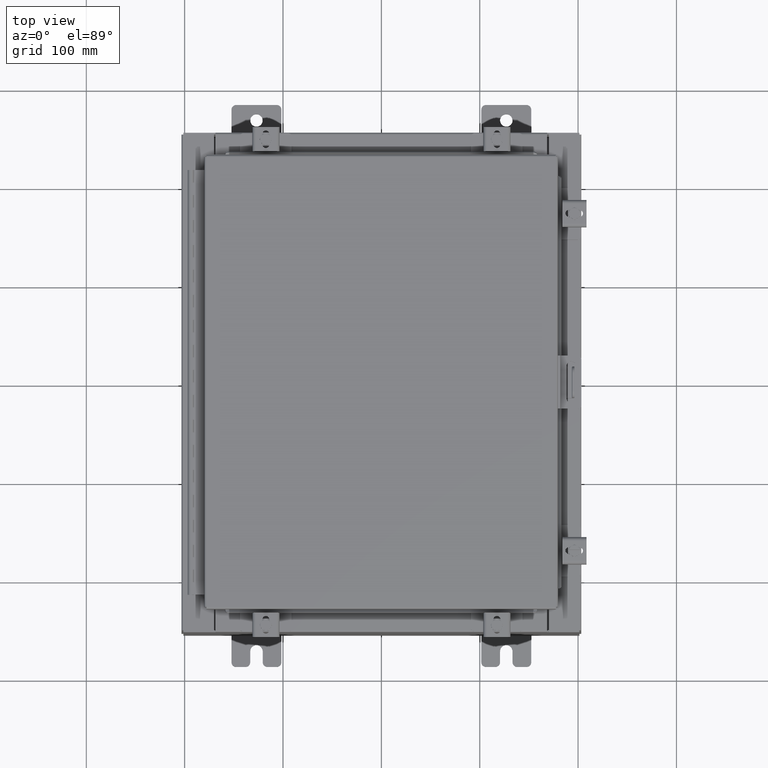
[diagram: clean part render]
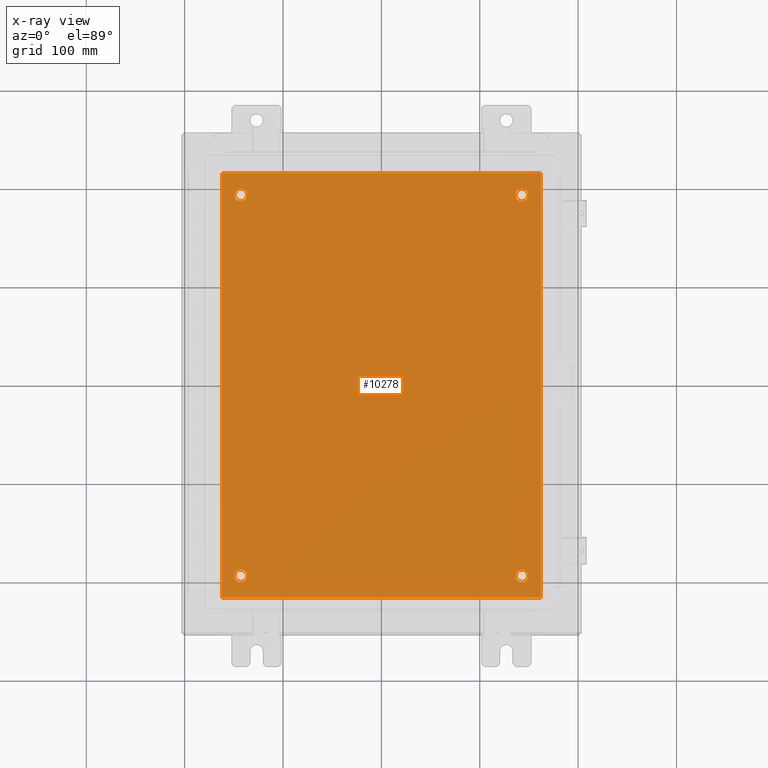
[diagram: x-ray — body ghosted, one internal face saturated and labeled with its STEP entity id]
A machine part, top view, then the same camera in x-ray: the body is ghosted and one INTERNAL B-rep face — a face not visible from any outside direction — is saturated and labeled: STEP entity #10278.
In plain terms, the highlighted planar face has unit normal (0, 0, -1).
Its self-contained STEP definition (entity closure, byte-faithful):
#16 = AXIS2_PLACEMENT_3D ( 'NONE', #24551, #10990, #26865 ) ;
#356 = EDGE_CURVE ( 'NONE', #5095, #17812, #5825, .T. ) ;
#434 = FACE_OUTER_BOUND ( 'NONE', #9827, .T. ) ;
#663 = EDGE_CURVE ( 'NONE', #9395, #25990, #10781, .T. ) ;
#1556 = VECTOR ( 'NONE', #6474, 39.37007874015748100 ) ;
#1607 = CARTESIAN_POINT ( 'NONE',  ( -5.625000000000000000, -7.625000000000001800, -0.1039999999999999800 ) ) ;
#1866 = VERTEX_POINT ( 'NONE', #18356 ) ;
#2431 = DIRECTION ( 'NONE',  ( -0.0000000000000000000, -0.0000000000000000000, 1.000000000000000000 ) ) ;
#2453 = CARTESIAN_POINT ( 'NONE',  ( -6.382999999999998200, -8.499999999999998200, -0.1039999999999998100 ) ) ;
#2477 = VECTOR ( 'NONE', #23964, 39.37007874015748100 ) ;
#2798 = ORIENTED_EDGE ( 'NONE', *, *, #22854, .T. ) ;
#3140 = DIRECTION ( 'NONE',  ( -0.0000000000000000000, -0.0000000000000000000, 1.000000000000000000 ) ) ;
#3271 = VERTEX_POINT ( 'NONE', #22803 ) ;
#3399 = VERTEX_POINT ( 'NONE', #27636 ) ;
#3430 = ORIENTED_EDGE ( 'NONE', *, *, #663, .F. ) ;
#3890 = DIRECTION ( 'NONE',  ( -1.000000000000000000, 0.0000000000000000000, 0.0000000000000000000 ) ) ;
#4136 = CIRCLE ( 'NONE', #22773, 0.2499999999999987000 ) ;
#4258 = CARTESIAN_POINT ( 'NONE',  ( -6.499999999999998200, -8.499999999999998200, -0.1039999999999999800 ) ) ;
#4276 = DIRECTION ( 'NONE',  ( 0.0000000000000000000, 1.000000000000000000, 0.0000000000000000000 ) ) ;
#4371 = CARTESIAN_POINT ( 'NONE',  ( -5.875000000000000000, -7.625000000000001800, -0.1039999999999999800 ) ) ;
#5095 = VERTEX_POINT ( 'NONE', #6761 ) ;
#5167 = EDGE_LOOP ( 'NONE', ( #16122, #29144 ) ) ;
#5452 = CARTESIAN_POINT ( 'NONE',  ( 0.0000000000000000000, 0.0000000000000000000, -0.1039999999999999800 ) ) ;
#5586 = EDGE_CURVE ( 'NONE', #25990, #3399, #25993, .T. ) ;
#5593 = CIRCLE ( 'NONE', #25731, 0.2499999999999987000 ) ;
#5598 = ORIENTED_EDGE ( 'NONE', *, *, #17550, .T. ) ;
#5698 = CARTESIAN_POINT ( 'NONE',  ( 5.375000000000006200, -7.625000000000000900, -0.1039999999999999800 ) ) ;
#5825 = CIRCLE ( 'NONE', #28106, 0.2499999999999987000 ) ;
#6474 = DIRECTION ( 'NONE',  ( 0.0000000000000000000, -1.000000000000000000, 0.0000000000000000000 ) ) ;
#6511 = FACE_BOUND ( 'NONE', #13852, .T. ) ;
#6761 = CARTESIAN_POINT ( 'NONE',  ( 5.375000000000001800, 7.625000000000002700, -0.1039999999999999800 ) ) ;
#7396 = AXIS2_PLACEMENT_3D ( 'NONE', #5452, #25891, #12320 ) ;
#7409 = ORIENTED_EDGE ( 'NONE', *, *, #21469, .T. ) ;
#7469 = AXIS2_PLACEMENT_3D ( 'NONE', #25837, #12275, #28153 ) ;
#8112 = CARTESIAN_POINT ( 'NONE',  ( -6.499999999999998200, 8.500000000000000000, -0.1039999999999999800 ) ) ;
#8227 = AXIS2_PLACEMENT_3D ( 'NONE', #1607, #17526, #3890 ) ;
#8501 = DIRECTION ( 'NONE',  ( -0.0000000000000000000, -0.0000000000000000000, 1.000000000000000000 ) ) ;
#8518 = ORIENTED_EDGE ( 'NONE', *, *, #14712, .T. ) ;
#8556 = CARTESIAN_POINT ( 'NONE',  ( 5.625000000000004400, -7.625000000000000900, -0.1039999999999999800 ) ) ;
#8663 = ORIENTED_EDGE ( 'NONE', *, *, #5586, .F. ) ;
#9395 = VERTEX_POINT ( 'NONE', #13481 ) ;
#9541 = VERTEX_POINT ( 'NONE', #25132 ) ;
#9827 = EDGE_LOOP ( 'NONE', ( #8663, #3430, #19435, #25363 ) ) ;
#10278 = ADVANCED_FACE ( 'NONE', ( #18609, #24603, #19332, #6511, #434 ), #23602, .T. ) ;
#10781 = LINE ( 'NONE', #22346, #1556 ) ;
#10834 = DIRECTION ( 'NONE',  ( -1.000000000000000000, 0.0000000000000000000, 0.0000000000000000000 ) ) ;
#10990 = DIRECTION ( 'NONE',  ( -0.0000000000000000000, -0.0000000000000000000, 1.000000000000000000 ) ) ;
#11445 = VERTEX_POINT ( 'NONE', #12068 ) ;
#11815 = CARTESIAN_POINT ( 'NONE',  ( -5.875000000000000000, 7.625000000000001800, -0.1039999999999999800 ) ) ;
#12060 = CIRCLE ( 'NONE', #16602, 0.2499999999999998100 ) ;
#12068 = CARTESIAN_POINT ( 'NONE',  ( 6.383000000000000900, 8.500000000000000000, -0.1039999999999999800 ) ) ;
#12275 = DIRECTION ( 'NONE',  ( -0.0000000000000000000, -0.0000000000000000000, 1.000000000000000000 ) ) ;
#12320 = DIRECTION ( 'NONE',  ( -1.000000000000000000, 0.0000000000000000000, -0.0000000000000000000 ) ) ;
#13481 = CARTESIAN_POINT ( 'NONE',  ( -6.382999999999998200, 8.500000000000000000, -0.1039999999999998100 ) ) ;
#13547 = CARTESIAN_POINT ( 'NONE',  ( 5.625000000000000000, 7.625000000000002700, -0.1039999999999999800 ) ) ;
#13604 = EDGE_CURVE ( 'NONE', #20599, #1866, #29395, .T. ) ;
#13737 = VECTOR ( 'NONE', #4276, 39.37007874015748100 ) ;
#13771 = EDGE_CURVE ( 'NONE', #3399, #11445, #26504, .T. ) ;
#13852 = EDGE_LOOP ( 'NONE', ( #8518, #5598 ) ) ;
#13937 = VECTOR ( 'NONE', #20165, 39.37007874015748100 ) ;
#14712 = EDGE_CURVE ( 'NONE', #3271, #15518, #22164, .T. ) ;
#15091 = VERTEX_POINT ( 'NONE', #5698 ) ;
#15172 = AXIS2_PLACEMENT_3D ( 'NONE', #16755, #3140, #19043 ) ;
#15518 = VERTEX_POINT ( 'NONE', #11815 ) ;
#15840 = DIRECTION ( 'NONE',  ( -1.000000000000000000, 0.0000000000000000000, 0.0000000000000000000 ) ) ;
#16062 = CARTESIAN_POINT ( 'NONE',  ( 5.625000000000000000, 7.625000000000002700, -0.1039999999999999800 ) ) ;
#16122 = ORIENTED_EDGE ( 'NONE', *, *, #19614, .T. ) ;
#16602 = AXIS2_PLACEMENT_3D ( 'NONE', #22081, #8501, #24351 ) ;
#16755 = CARTESIAN_POINT ( 'NONE',  ( 5.625000000000004400, -7.625000000000000900, -0.1039999999999999800 ) ) ;
#17190 = EDGE_CURVE ( 'NONE', #11445, #9395, #25192, .T. ) ;
#17526 = DIRECTION ( 'NONE',  ( -0.0000000000000000000, -0.0000000000000000000, 1.000000000000000000 ) ) ;
#17550 = EDGE_CURVE ( 'NONE', #15518, #3271, #12060, .T. ) ;
#17689 = EDGE_LOOP ( 'NONE', ( #7409, #19600 ) ) ;
#17812 = VERTEX_POINT ( 'NONE', #27834 ) ;
#18342 = DIRECTION ( 'NONE',  ( -1.000000000000000000, 0.0000000000000000000, 0.0000000000000000000 ) ) ;
#18356 = CARTESIAN_POINT ( 'NONE',  ( -5.375000000000000900, -7.625000000000001800, -0.1039999999999999800 ) ) ;
#18609 = FACE_BOUND ( 'NONE', #23655, .T. ) ;
#19043 = DIRECTION ( 'NONE',  ( -1.000000000000000000, 0.0000000000000000000, 0.0000000000000000000 ) ) ;
#19332 = FACE_BOUND ( 'NONE', #5167, .T. ) ;
#19435 = ORIENTED_EDGE ( 'NONE', *, *, #17190, .F. ) ;
#19600 = ORIENTED_EDGE ( 'NONE', *, *, #27857, .T. ) ;
#19614 = EDGE_CURVE ( 'NONE', #17812, #5095, #5593, .T. ) ;
#20165 = DIRECTION ( 'NONE',  ( 1.000000000000000000, 0.0000000000000000000, 0.0000000000000000000 ) ) ;
#20185 = CARTESIAN_POINT ( 'NONE',  ( 6.383000000000002700, -8.499999999999998200, -0.1039999999999998100 ) ) ;
#20599 = VERTEX_POINT ( 'NONE', #4371 ) ;
#21469 = EDGE_CURVE ( 'NONE', #9541, #15091, #21829, .T. ) ;
#21829 = CIRCLE ( 'NONE', #15172, 0.2499999999999987000 ) ;
#22081 = CARTESIAN_POINT ( 'NONE',  ( -5.625000000000000000, 7.625000000000001800, -0.1039999999999999800 ) ) ;
#22164 = CIRCLE ( 'NONE', #7469, 0.2499999999999998100 ) ;
#22346 = CARTESIAN_POINT ( 'NONE',  ( -6.382999999999998200, 8.500000000000000000, -0.1039999999999998100 ) ) ;
#22773 = AXIS2_PLACEMENT_3D ( 'NONE', #8556, #24406, #10834 ) ;
#22803 = CARTESIAN_POINT ( 'NONE',  ( -5.375000000000000900, 7.625000000000001800, -0.1039999999999999800 ) ) ;
#22854 = EDGE_CURVE ( 'NONE', #1866, #20599, #28185, .T. ) ;
#23271 = ORIENTED_EDGE ( 'NONE', *, *, #13604, .T. ) ;
#23602 = PLANE ( 'NONE',  #7396 ) ;
#23655 = EDGE_LOOP ( 'NONE', ( #2798, #23271 ) ) ;
#23964 = DIRECTION ( 'NONE',  ( -1.000000000000000000, -0.0000000000000000000, -0.0000000000000000000 ) ) ;
#24351 = DIRECTION ( 'NONE',  ( -1.000000000000000000, 0.0000000000000000000, 0.0000000000000000000 ) ) ;
#24406 = DIRECTION ( 'NONE',  ( -0.0000000000000000000, -0.0000000000000000000, 1.000000000000000000 ) ) ;
#24551 = CARTESIAN_POINT ( 'NONE',  ( -5.625000000000000000, -7.625000000000001800, -0.1039999999999999800 ) ) ;
#24603 = FACE_BOUND ( 'NONE', #17689, .T. ) ;
#25132 = CARTESIAN_POINT ( 'NONE',  ( 5.875000000000003600, -7.625000000000000900, -0.1039999999999999800 ) ) ;
#25192 = LINE ( 'NONE', #8112, #2477 ) ;
#25363 = ORIENTED_EDGE ( 'NONE', *, *, #13771, .F. ) ;
#25731 = AXIS2_PLACEMENT_3D ( 'NONE', #16062, #2431, #18342 ) ;
#25837 = CARTESIAN_POINT ( 'NONE',  ( -5.625000000000000000, 7.625000000000001800, -0.1039999999999999800 ) ) ;
#25891 = DIRECTION ( 'NONE',  ( 0.0000000000000000000, 0.0000000000000000000, -1.000000000000000000 ) ) ;
#25990 = VERTEX_POINT ( 'NONE', #2453 ) ;
#25993 = LINE ( 'NONE', #4258, #13937 ) ;
#26504 = LINE ( 'NONE', #20185, #13737 ) ;
#26865 = DIRECTION ( 'NONE',  ( -1.000000000000000000, 0.0000000000000000000, 0.0000000000000000000 ) ) ;
#27636 = CARTESIAN_POINT ( 'NONE',  ( 6.383000000000000900, -8.499999999999998200, -0.1039999999999999800 ) ) ;
#27834 = CARTESIAN_POINT ( 'NONE',  ( 5.874999999999999100, 7.625000000000002700, -0.1039999999999999800 ) ) ;
#27857 = EDGE_CURVE ( 'NONE', #15091, #9541, #4136, .T. ) ;
#28106 = AXIS2_PLACEMENT_3D ( 'NONE', #13547, #29450, #15840 ) ;
#28153 = DIRECTION ( 'NONE',  ( -1.000000000000000000, 0.0000000000000000000, 0.0000000000000000000 ) ) ;
#28185 = CIRCLE ( 'NONE', #16, 0.2499999999999998100 ) ;
#29144 = ORIENTED_EDGE ( 'NONE', *, *, #356, .T. ) ;
#29395 = CIRCLE ( 'NONE', #8227, 0.2499999999999998100 ) ;
#29450 = DIRECTION ( 'NONE',  ( -0.0000000000000000000, -0.0000000000000000000, 1.000000000000000000 ) ) ;